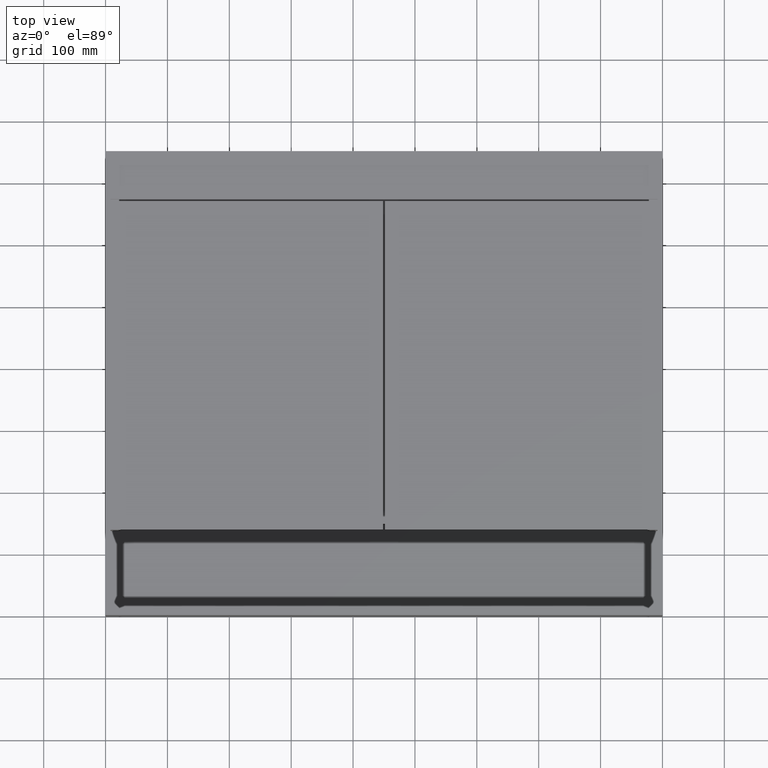
[diagram: clean part render]
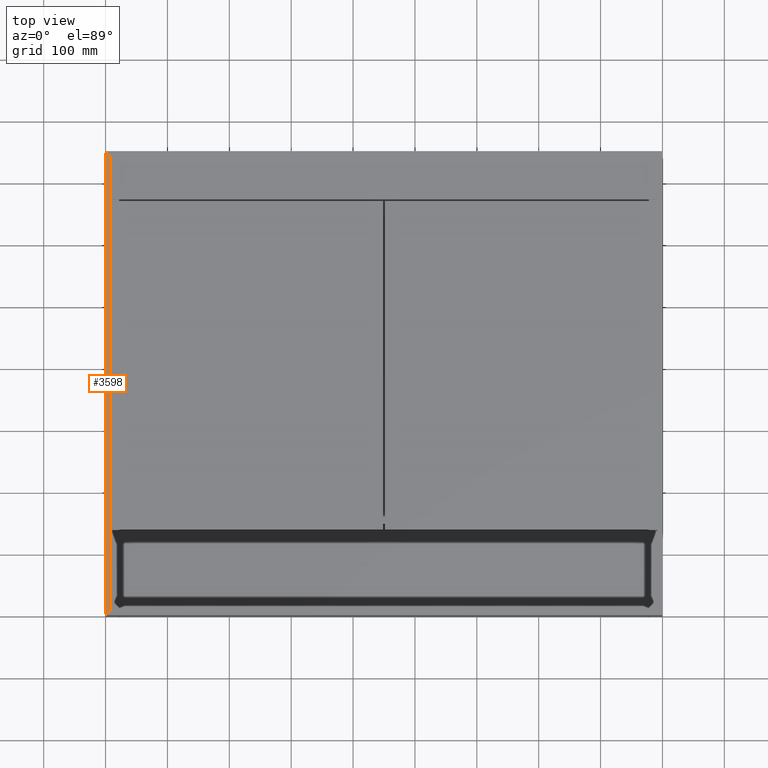
[diagram: same view with one face highlighted and labeled with its STEP entity id]
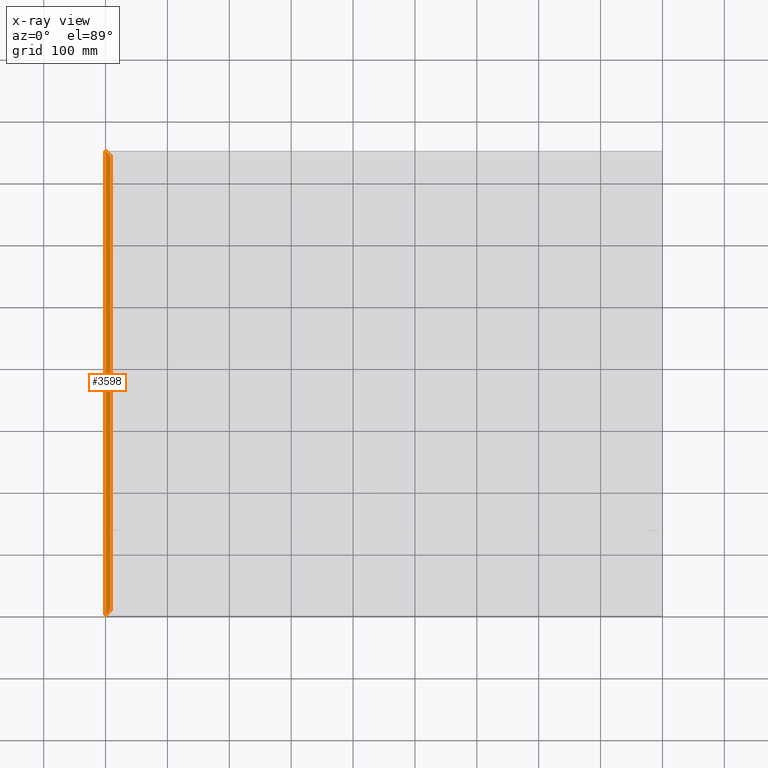
[diagram: x-ray of the same camera — body ghosted, the highlighted face saturated]
A machine part, top view. The second image highlights one B-rep face of the part: STEP entity #3598.
The next image is the same camera in x-ray: the body ghosted, the highlighted face saturated — about 0% of this face is hidden behind the body in this view.
In plain terms, the highlighted planar face has unit normal (0, -0, -1).
Its self-contained STEP definition (entity closure, byte-faithful):
#20 = CARTESIAN_POINT ( 'NONE',  ( 8.000000000000003553, 900.2131818450033052, 2.775557561562891351E-14 ) ) ;
#295 = EDGE_LOOP ( 'NONE', ( #946, #6494, #10260, #8416 ) ) ;
#832 = FACE_OUTER_BOUND ( 'NONE', #295, .T. ) ;
#946 = ORIENTED_EDGE ( 'NONE', *, *, #6648, .T. ) ;
#1015 = CARTESIAN_POINT ( 'NONE',  ( -6.071532165918824830E-15, 750.0000000000000000, 1.387778780781445676E-14 ) ) ;
#1019 = LINE ( 'NONE', #4453, #10486 ) ;
#1367 = LINE ( 'NONE', #4806, #7028 ) ;
#1458 = EDGE_CURVE ( 'NONE', #4455, #7686, #7745, .T. ) ;
#1997 = EDGE_CURVE ( 'NONE', #4455, #2297, #8740, .T. ) ;
#2169 = CARTESIAN_POINT ( 'NONE',  ( -8.673617379884035472E-16, -1.665334536937734811E-13, 1.387778780781445676E-14 ) ) ;
#2297 = VERTEX_POINT ( 'NONE', #6967 ) ;
#3201 = VECTOR ( 'NONE', #4447, 1000.000000000000000 ) ;
#3429 = DIRECTION ( 'NONE',  ( -1.000000000000000000, -1.355252715606880242E-20, -1.734723475976806709E-18 ) ) ;
#3449 = DIRECTION ( 'NONE',  ( -1.355252715606880242E-20, -1.000000000000000000, -2.435219723356112993E-19 ) ) ;
#3598 = ADVANCED_FACE ( 'NONE', ( #832 ), #4267, .F. ) ;
#4267 = PLANE ( 'NONE',  #5186 ) ;
#4346 = EDGE_CURVE ( 'NONE', #9682, #7686, #1367, .T. ) ;
#4447 = DIRECTION ( 'NONE',  ( -0.7071067811865474617, 0.7071067811865475727, -8.673617379884033546E-19 ) ) ;
#4453 = CARTESIAN_POINT ( 'NONE',  ( -8.673617379884035472E-16, 900.2131818450033052, 1.387778780781445676E-14 ) ) ;
#4455 = VERTEX_POINT ( 'NONE', #6786 ) ;
#4806 = CARTESIAN_POINT ( 'NONE',  ( 8.000000000000003553, 7.999999999999896083, 2.775557561562891351E-14 ) ) ;
#5186 = AXIS2_PLACEMENT_3D ( 'NONE', #7719, #11159, #3429 ) ;
#6494 = ORIENTED_EDGE ( 'NONE', *, *, #4346, .T. ) ;
#6648 = EDGE_CURVE ( 'NONE', #2297, #9682, #1019, .T. ) ;
#6786 = CARTESIAN_POINT ( 'NONE',  ( 8.000000000000001776, 742.0000000000000000, 1.387778780781445676E-14 ) ) ;
#6967 = CARTESIAN_POINT ( 'NONE',  ( -8.673617379884035472E-16, 750.0000000000000000, 1.387778780781445676E-14 ) ) ;
#7028 = VECTOR ( 'NONE', #8261, 1000.000000000000000 ) ;
#7686 = VERTEX_POINT ( 'NONE', #8634 ) ;
#7719 = CARTESIAN_POINT ( 'NONE',  ( -8.673617379884035472E-16, 900.2131818450033052, 1.387778780781445676E-14 ) ) ;
#7745 = LINE ( 'NONE', #20, #8784 ) ;
#7906 = DIRECTION ( 'NONE',  ( -1.355252715606880242E-20, -1.000000000000000000, -2.435219723356112993E-19 ) ) ;
#8261 = DIRECTION ( 'NONE',  ( 0.7071067811865475727, 0.7071067811865474617, 1.301042606982604936E-18 ) ) ;
#8416 = ORIENTED_EDGE ( 'NONE', *, *, #1997, .T. ) ;
#8634 = CARTESIAN_POINT ( 'NONE',  ( 8.000000000000003553, 7.999999999999896083, 2.775557561562891351E-14 ) ) ;
#8740 = LINE ( 'NONE', #1015, #3201 ) ;
#8784 = VECTOR ( 'NONE', #3449, 1000.000000000000000 ) ;
#9682 = VERTEX_POINT ( 'NONE', #2169 ) ;
#10260 = ORIENTED_EDGE ( 'NONE', *, *, #1458, .F. ) ;
#10486 = VECTOR ( 'NONE', #7906, 1000.000000000000000 ) ;
#11159 = DIRECTION ( 'NONE',  ( 1.734723475976806709E-18, -2.435219723356112993E-19, -1.000000000000000000 ) ) ;